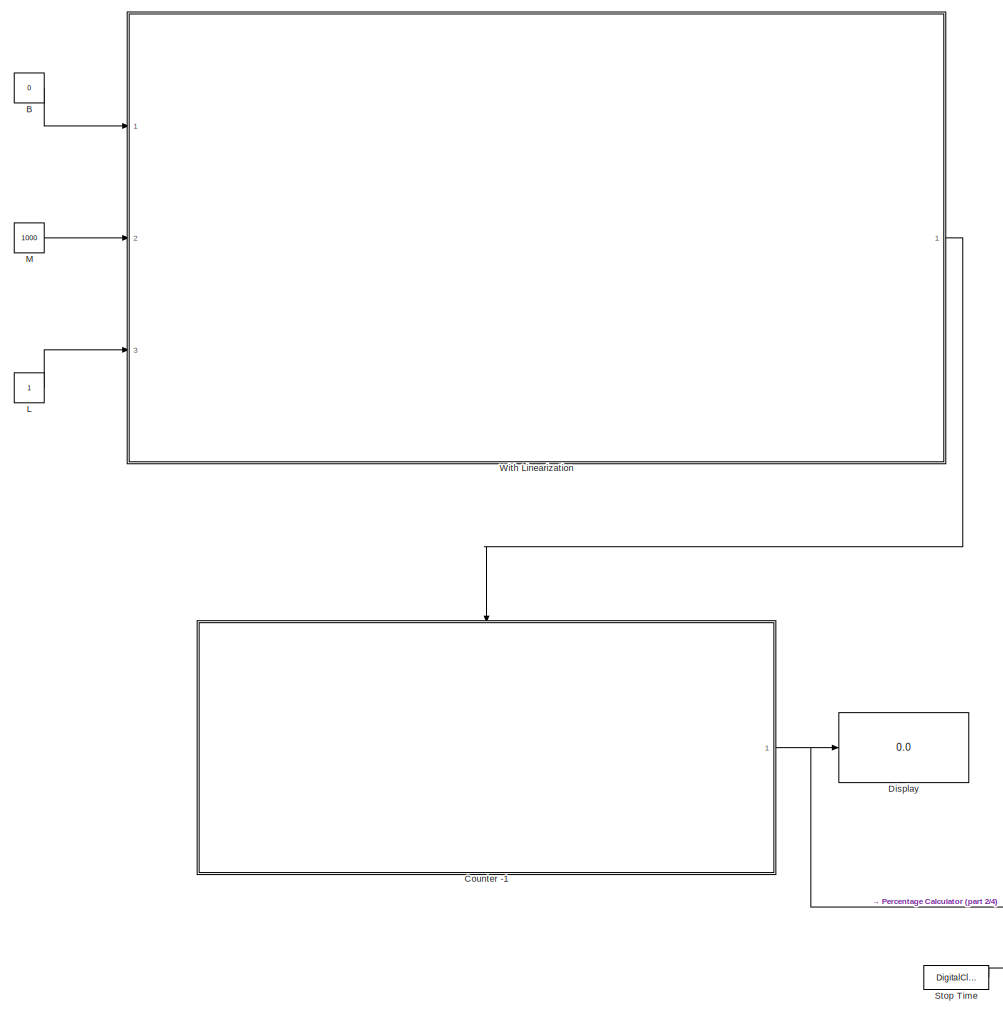
[diagram: root canvas - part 1/4, top left region]
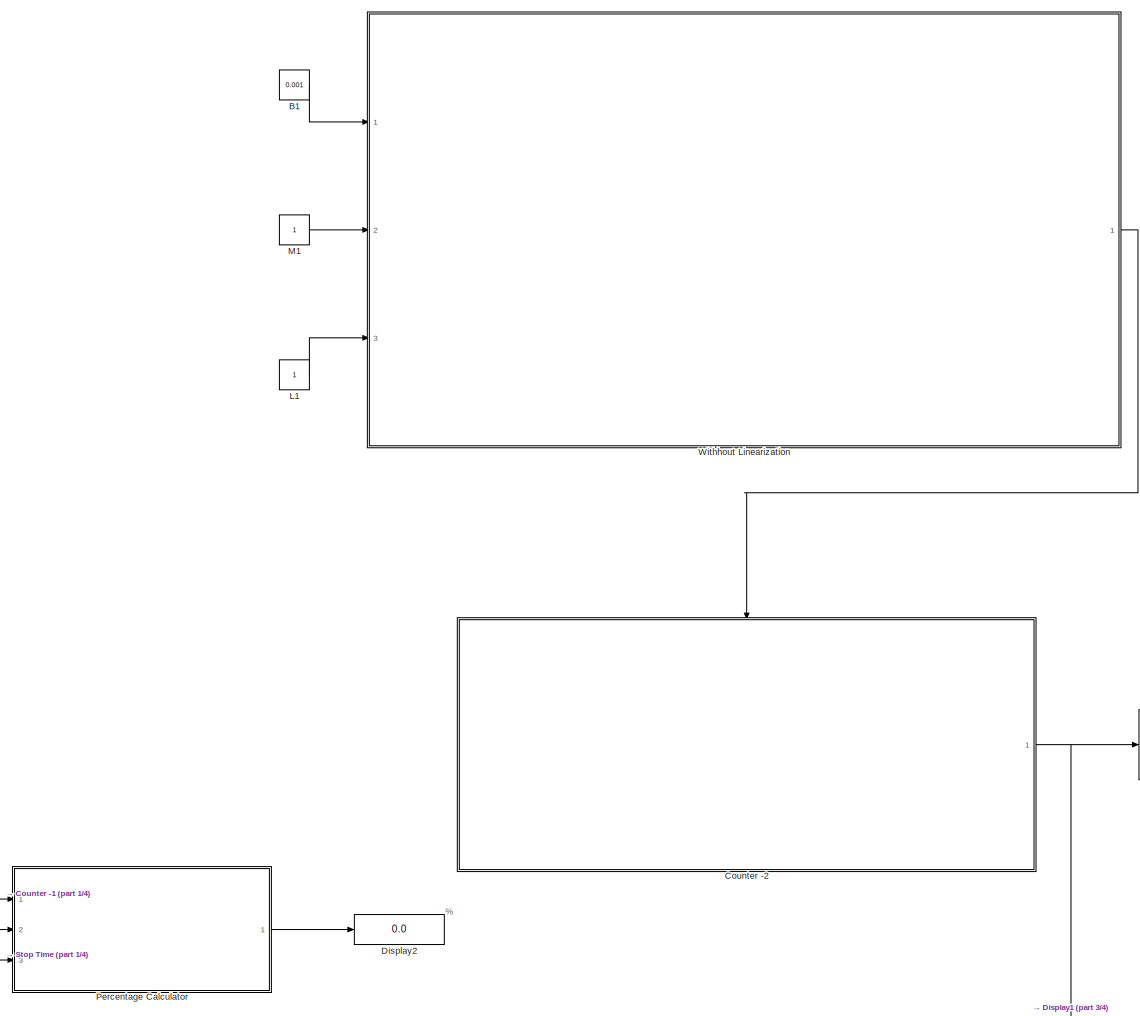
[diagram: root canvas - part 2/4, top center region]
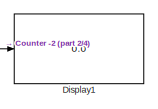
[diagram: root canvas - part 3/4, middle right region]
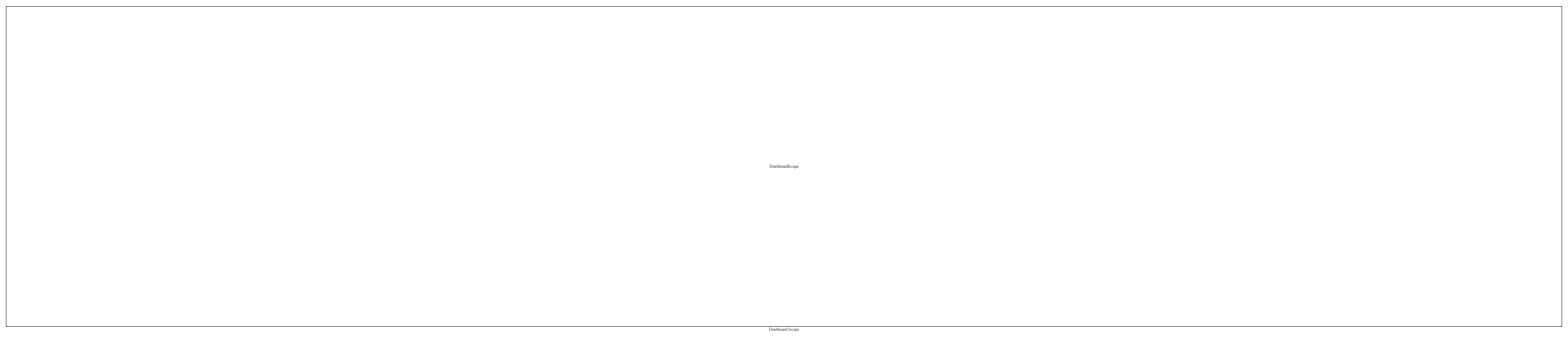
[diagram: root canvas - part 4/4, full width, bottom band]
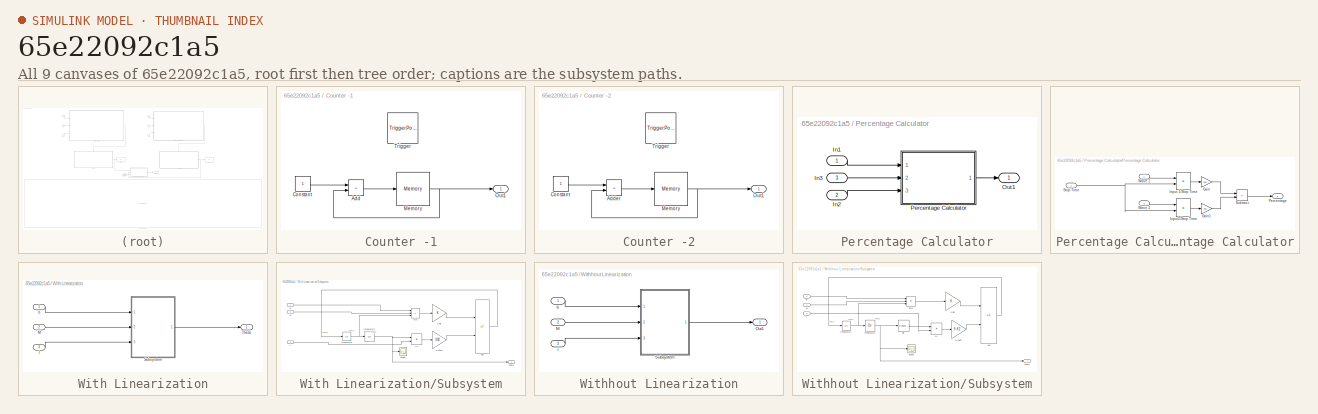
[diagram: thumbnail index - all 9 canvases of the model, root first then tree order]
MODEL slx_65e22092c1a5
KIND model
CONFIG AbsTol = auto
CONFIG EnableMultiTasking = off
CONFIG FixedStep = auto
CONFIG MaxStep = auto
CONFIG MinStep = auto
CONFIG RelTol = 1e-3
CONFIG SampleTimeConstraint = Unconstrained
CONFIG Solver = VariableStepAuto
CONFIG SolverName = VariableStepAuto
CONFIG StartTime = 0.0
CONFIG StopTime = 50
BLOCK [Constant] B
  Value = 0
BLOCK [Constant] B1
  Value = 0.001
BLOCK [SubSystem] Counter -1
  Ports = [0, 1, 0, 1]
  RequestExecContextInheritance = off
BLOCK [Sum] Counter -1/Add
  IconShape = rectangular
  Ports = [2, 1]
BLOCK [Constant] Counter -1/Constant
  NameLocation = top
BLOCK [Memory] Counter -1/Memory
  InheritSampleTime = on
BLOCK [Outport] Counter -1/Out1
BLOCK [TriggerPort] Counter -1/Trigger
  PortDimensions = 1
  Ports = []
  StatesWhenEnabling = held
  VariantControl = Variant
BLOCK [SubSystem] Counter -2
  Ports = [0, 1, 0, 1]
  RequestExecContextInheritance = off
BLOCK [Sum] Counter -2/Adder
  IconShape = rectangular
  Ports = [2, 1]
BLOCK [Constant] Counter -2/Constant
  NameLocation = top
BLOCK [Memory] Counter -2/Memory
  InheritSampleTime = on
BLOCK [Outport] Counter -2/Out1
BLOCK [TriggerPort] Counter -2/Trigger
  PortDimensions = 1
  Ports = []
  StatesWhenEnabling = held
  VariantControl = Variant
BLOCK [DashboardScope] Dashboard Scope
BLOCK [Display] Display
  Decimation = 1
  Ports = [1]
BLOCK [Display] Display1
  Decimation = 1
  Ports = [1]
BLOCK [Display] Display2
  Decimation = 1
  Ports = [1]
BLOCK [Constant] L
BLOCK [Constant] L1
BLOCK [Constant] M
  Value = 1000
BLOCK [Constant] M1
BLOCK [SubSystem] Percentage Calculator
  Ports = [3, 1]
  RequestExecContextInheritance = off
BLOCK [Inport] Percentage Calculator/In1
BLOCK [Inport] Percentage Calculator/In2
  Port = 2
BLOCK [Inport] Percentage Calculator/In3
  Port = 3
BLOCK [Outport] Percentage Calculator/Out1
BLOCK [SubSystem] Percentage Calculator/Percentage Calculator
  Ports = [3, 1]
  RequestExecContextInheritance = off
BLOCK [Gain] Percentage Calculator/Percentage Calculator/Gain
  Gain = 100
BLOCK [Gain] Percentage Calculator/Percentage Calculator/Gain1
  Gain = 100
BLOCK [Product] Percentage Calculator/Percentage Calculator/Input 1//Stop Time
  Inputs = */
  Ports = [2, 1]
BLOCK [Product] Percentage Calculator/Percentage Calculator/Input2//Stop Time
  Inputs = */
  Ports = [2, 1]
BLOCK [Outport] Percentage Calculator/Percentage Calculator/Percentage
BLOCK [Inport] Percentage Calculator/Percentage Calculator/Stop Time
  Port = 2
BLOCK [Sum] Percentage Calculator/Percentage Calculator/Subtract
  IconShape = rectangular
  Inputs = +-
  Ports = [2, 1]
BLOCK [Inport] Percentage Calculator/Percentage Calculator/Wave 1
BLOCK [Inport] Percentage Calculator/Percentage Calculator/Wave 2
  Port = 3
BLOCK [DigitalClock] Stop Time
BLOCK [SubSystem] With Linearization
  Ports = [3, 1]
  RequestExecContextInheritance = off
BLOCK [Inport] With Linearization/M
  Port = 2
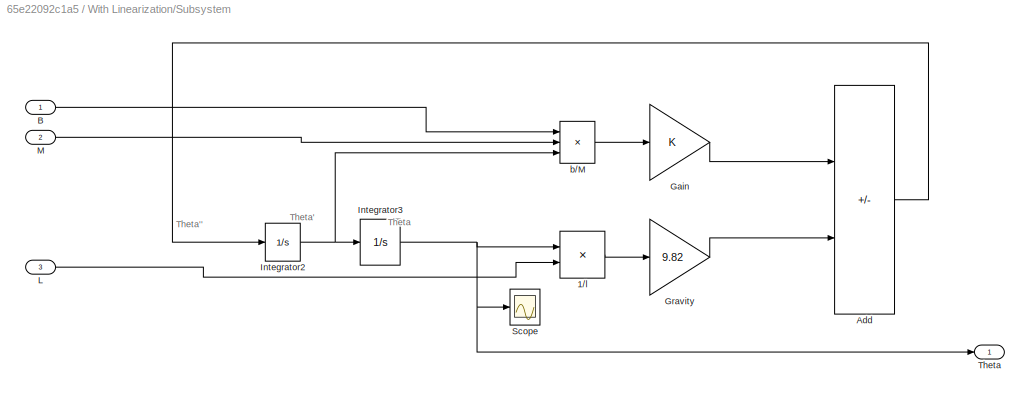
BLOCK [SubSystem] With Linearization/Subsystem
  Ports = [3, 1]
  RequestExecContextInheritance = off
BLOCK [Product] With Linearization/Subsystem/1//l
  Inputs = */
  Ports = [2, 1]
BLOCK [Sum] With Linearization/Subsystem/Add
  IconShape = rectangular
  Inputs = --
  Ports = [2, 1]
BLOCK [Inport] With Linearization/Subsystem/B
BLOCK [Gain] With Linearization/Subsystem/Gain
BLOCK [Gain] With Linearization/Subsystem/Gravity
  Gain = 9.82
BLOCK [Integrator] With Linearization/Subsystem/Integrator2
  Ports = [1, 1]
BLOCK [Integrator] With Linearization/Subsystem/Integrator3
  InitialCondition = pi/4
  Ports = [1, 1]
BLOCK [Inport] With Linearization/Subsystem/L
  Port = 3
BLOCK [Inport] With Linearization/Subsystem/M
  Port = 2
BLOCK [Scope] With Linearization/Subsystem/Scope
  Floating = off
  NumInputPorts = 1
  Ports = [1]
  ScopeSpecificationString = Simulink.scopes.TimeScopeBlockCfg('CurrentConfiguration', extmgr.ConfigurationSet(extmgr.Configuration('Core','General UI',true),extmgr.Configuration('Core','Source UI',true),extmgr.Configuration('Sources','WiredSimulink',true,'DataLoggingVariableName','ScopeData1'),extmgr.Configuration('Visuals','Time Domain',true,'SerializedDisplays',{struct('MinYLimReal','-0.98632','MaxYLimReal','0.98472','YLab...<+1398ch>
BLOCK [Outport] With Linearization/Subsystem/Theta
BLOCK [Product] With Linearization/Subsystem/b//M
  Inputs = */*
  Ports = [3, 1]
BLOCK [Outport] With Linearization/Theta
BLOCK [Inport] With Linearization/b
BLOCK [Inport] With Linearization/l
  Port = 3
BLOCK [SubSystem] Withhout Linearization
  Ports = [3, 1]
  RequestExecContextInheritance = off
BLOCK [Inport] Withhout Linearization/M
  Port = 2
BLOCK [Outport] Withhout Linearization/Out1
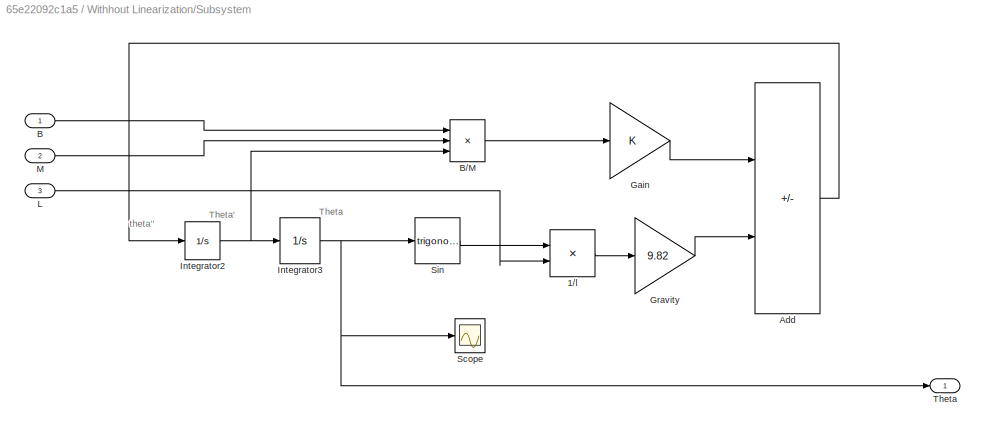
BLOCK [SubSystem] Withhout Linearization/Subsystem
  Ports = [3, 1]
  RequestExecContextInheritance = off
BLOCK [Product] Withhout Linearization/Subsystem/1//l
  Inputs = */
  Ports = [2, 1]
BLOCK [Sum] Withhout Linearization/Subsystem/Add
  IconShape = rectangular
  Inputs = --
  Ports = [2, 1]
BLOCK [Inport] Withhout Linearization/Subsystem/B
BLOCK [Product] Withhout Linearization/Subsystem/B//M
  Inputs = */*
  Ports = [3, 1]
BLOCK [Gain] Withhout Linearization/Subsystem/Gain
BLOCK [Gain] Withhout Linearization/Subsystem/Gravity
  Gain = 9.82
BLOCK [Integrator] Withhout Linearization/Subsystem/Integrator2
  Ports = [1, 1]
BLOCK [Integrator] Withhout Linearization/Subsystem/Integrator3
  InitialCondition = pi/4
  Ports = [1, 1]
BLOCK [Inport] Withhout Linearization/Subsystem/L
  Port = 3
BLOCK [Inport] Withhout Linearization/Subsystem/M
  Port = 2
BLOCK [Scope] Withhout Linearization/Subsystem/Scope
  Floating = off
  NumInputPorts = 1
  Ports = [1]
  ScopeSpecificationString = Simulink.scopes.TimeScopeBlockCfg('CurrentConfiguration', extmgr.ConfigurationSet(extmgr.Configuration('Core','General UI',true),extmgr.Configuration('Core','Source UI',true),extmgr.Configuration('Sources','WiredSimulink',true),extmgr.Configuration('Visuals','Time Domain',true,'SerializedDisplays',{struct('MinYLimReal','-0.97182','MaxYLimReal','0.98064','YLabelReal','','MinYLimMag','0.00000','MaxY...<+1360ch>
BLOCK [Trigonometry] Withhout Linearization/Subsystem/Sin
  Ports = [1, 1]
BLOCK [Outport] Withhout Linearization/Subsystem/Theta
BLOCK [Inport] Withhout Linearization/b
BLOCK [Inport] Withhout Linearization/l
  Port = 3
ANNOTATION (root): %
ANNOTATION With Linearization/Subsystem: Theta ''
ANNOTATION With Linearization/Subsystem: Theta
ANNOTATION With Linearization/Subsystem: Theta'
ANNOTATION Withhout Linearization/Subsystem: theta''
ANNOTATION Withhout Linearization/Subsystem: Theta
ANNOTATION Withhout Linearization/Subsystem: Theta'
LINE B1:1 -> Withhout Linearization:1
LINE B:1 -> With Linearization:1
LINE Counter -1/Add:1 -> Counter -1/Memory:1
LINE Counter -1/Constant:1 -> Counter -1/Add:1
NET Counter -1/Memory:1 -> Counter -1/Add:2, Counter -1/Out1:1
NET Counter -1:1 -> Display:1, Percentage Calculator:1
LINE Counter -2/Adder:1 -> Counter -2/Memory:1
LINE Counter -2/Constant:1 -> Counter -2/Adder:1
NET Counter -2/Memory:1 -> Counter -2/Adder:2, Counter -2/Out1:1
NET Counter -2:1 -> Display1:1, Percentage Calculator:2
LINE L1:1 -> Withhout Linearization:3
LINE L:1 -> With Linearization:3
LINE M1:1 -> Withhout Linearization:2
LINE M:1 -> With Linearization:2
LINE Percentage Calculator/In1:1 -> Percentage Calculator/Percentage Calculator:1
LINE Percentage Calculator/In2:1 -> Percentage Calculator/Percentage Calculator:3
LINE Percentage Calculator/In3:1 -> Percentage Calculator/Percentage Calculator:2
LINE Percentage Calculator/Percentage Calculator/Gain1:1 -> Percentage Calculator/Percentage Calculator/Subtract:2
LINE Percentage Calculator/Percentage Calculator/Gain:1 -> Percentage Calculator/Percentage Calculator/Subtract:1
LINE Percentage Calculator/Percentage Calculator/Input 1//Stop Time:1 -> Percentage Calculator/Percentage Calculator/Gain:1
LINE Percentage Calculator/Percentage Calculator/Input2//Stop Time:1 -> Percentage Calculator/Percentage Calculator/Gain1:1
NET Percentage Calculator/Percentage Calculator/Stop Time:1 -> Percentage Calculator/Percentage Calculator/Input 1//Stop Time:2, Percentage Calculator/Percentage Calculator/Input2//Stop Time:2
LINE Percentage Calculator/Percentage Calculator/Subtract:1 -> Percentage Calculator/Percentage Calculator/Percentage:1
LINE Percentage Calculator/Percentage Calculator/Wave 1:1 -> Percentage Calculator/Percentage Calculator/Input 1//Stop Time:1
LINE Percentage Calculator/Percentage Calculator/Wave 2:1 -> Percentage Calculator/Percentage Calculator/Input2//Stop Time:1
LINE Percentage Calculator/Percentage Calculator:1 -> Percentage Calculator/Out1:1
LINE Percentage Calculator:1 -> Display2:1
LINE Stop Time:1 -> Percentage Calculator:3
LINE With Linearization/M:1 -> With Linearization/Subsystem:2
LINE With Linearization/Subsystem/1//l:1 -> With Linearization/Subsystem/Gravity:1
LINE With Linearization/Subsystem/Add:1 -> With Linearization/Subsystem/Integrator2:1
LINE With Linearization/Subsystem/B:1 -> With Linearization/Subsystem/b//M:1
LINE With Linearization/Subsystem/Gain:1 -> With Linearization/Subsystem/Add:1
LINE With Linearization/Subsystem/Gravity:1 -> With Linearization/Subsystem/Add:2
NET With Linearization/Subsystem/Integrator2:1 -> With Linearization/Subsystem/Integrator3:1, With Linearization/Subsystem/b//M:3
NET With Linearization/Subsystem/Integrator3:1 -> With Linearization/Subsystem/1//l:1, With Linearization/Subsystem/Scope:1, With Linearization/Subsystem/Theta:1
LINE With Linearization/Subsystem/L:1 -> With Linearization/Subsystem/1//l:2
LINE With Linearization/Subsystem/M:1 -> With Linearization/Subsystem/b//M:2
LINE With Linearization/Subsystem/b//M:1 -> With Linearization/Subsystem/Gain:1
LINE With Linearization/Subsystem:1 -> With Linearization/Theta:1
LINE With Linearization/b:1 -> With Linearization/Subsystem:1
LINE With Linearization/l:1 -> With Linearization/Subsystem:3
LINE With Linearization:1 -> Counter -1:trigger
LINE Withhout Linearization/M:1 -> Withhout Linearization/Subsystem:2
LINE Withhout Linearization/Subsystem/1//l:1 -> Withhout Linearization/Subsystem/Gravity:1
LINE Withhout Linearization/Subsystem/Add:1 -> Withhout Linearization/Subsystem/Integrator2:1
LINE Withhout Linearization/Subsystem/B//M:1 -> Withhout Linearization/Subsystem/Gain:1
LINE Withhout Linearization/Subsystem/B:1 -> Withhout Linearization/Subsystem/B//M:1
LINE Withhout Linearization/Subsystem/Gain:1 -> Withhout Linearization/Subsystem/Add:1
LINE Withhout Linearization/Subsystem/Gravity:1 -> Withhout Linearization/Subsystem/Add:2
NET Withhout Linearization/Subsystem/Integrator2:1 -> Withhout Linearization/Subsystem/B//M:3, Withhout Linearization/Subsystem/Integrator3:1
NET Withhout Linearization/Subsystem/Integrator3:1 -> Withhout Linearization/Subsystem/Scope:1, Withhout Linearization/Subsystem/Sin:1, Withhout Linearization/Subsystem/Theta:1
LINE Withhout Linearization/Subsystem/L:1 -> Withhout Linearization/Subsystem/1//l:2
LINE Withhout Linearization/Subsystem/M:1 -> Withhout Linearization/Subsystem/B//M:2
LINE Withhout Linearization/Subsystem/Sin:1 -> Withhout Linearization/Subsystem/1//l:1
LINE Withhout Linearization/Subsystem:1 -> Withhout Linearization/Out1:1
LINE Withhout Linearization/b:1 -> Withhout Linearization/Subsystem:1
LINE Withhout Linearization/l:1 -> Withhout Linearization/Subsystem:3
LINE Withhout Linearization:1 -> Counter -2:trigger
note: NET lines group one-source signal fan-out (src -> all destinations, sorted); 1:1 wires keep LINE
